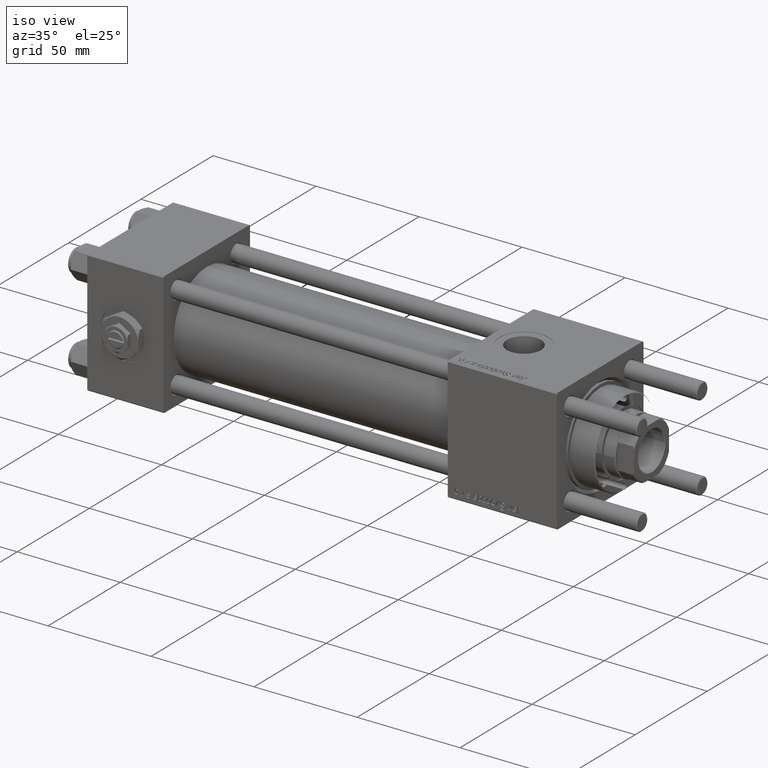
[diagram: clean part render]
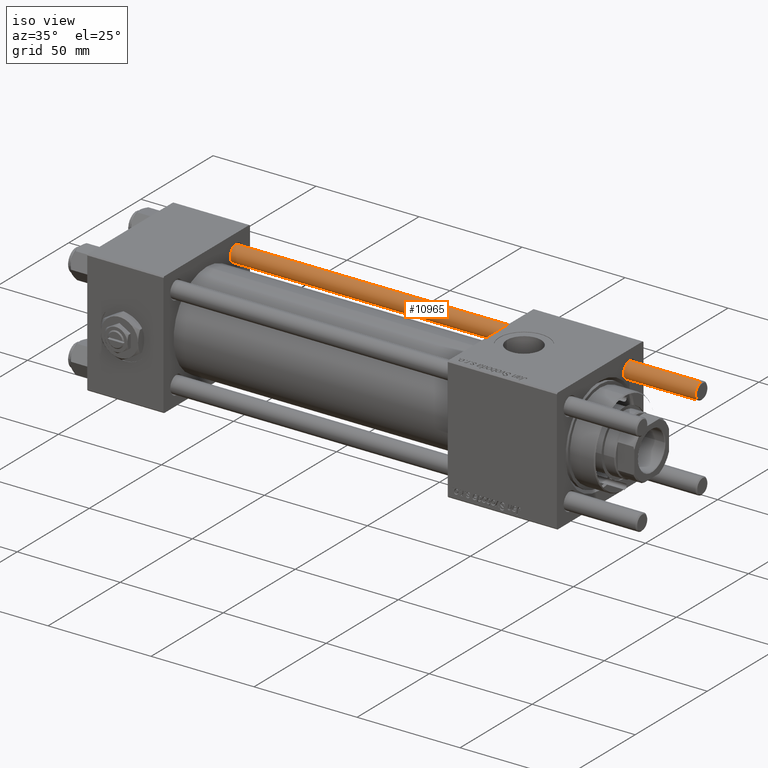
[diagram: same view with one face highlighted and labeled with its STEP entity id]
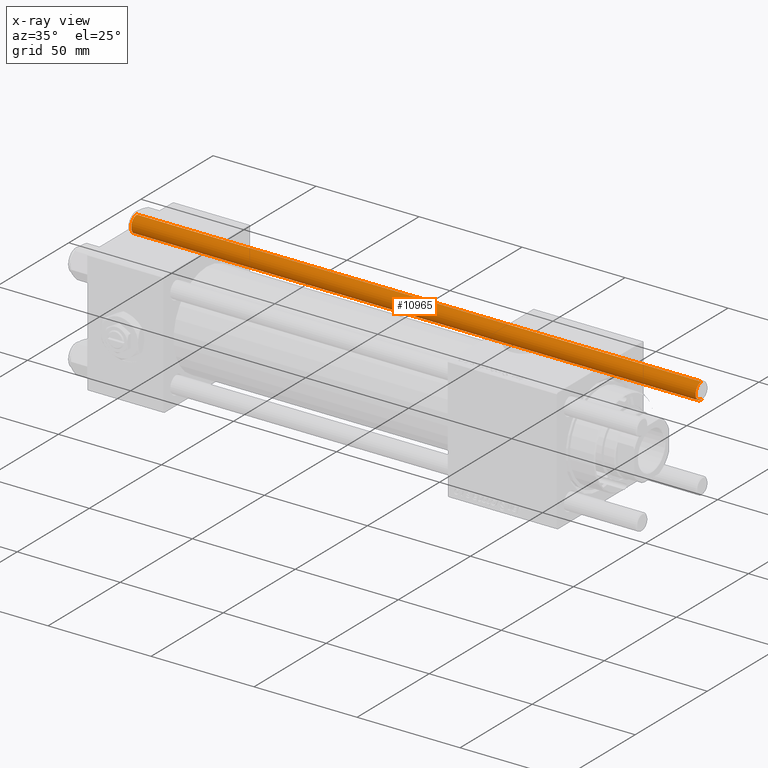
[diagram: x-ray of the same camera — body ghosted, the highlighted face saturated]
A machine part, iso view. The second image highlights one B-rep face of the part: STEP entity #10965.
The next image is the same camera in x-ray: the body ghosted, the highlighted face saturated — about 0% of this face is hidden behind the body in this view.
In plain terms, the highlighted cylindrical surface (edge-blend (fillet) strip) has radius 4 mm, axis along (1, -0, -0).
Its self-contained STEP definition (entity closure, byte-faithful):
#2130 = CARTESIAN_POINT ( 'NONE',  ( -4.000000000000000000, 0.000000000000000000, 0.5000000000000559552 ) ) ;
#3219 = DIRECTION ( 'NONE',  ( -0.000000000000000000, -0.000000000000000000, 1.000000000000000000 ) ) ;
#7165 = LINE ( 'NONE', #58197, #38874 ) ;
#7833 = ORIENTED_EDGE ( 'NONE', *, *, #13949, .T. ) ;
#10892 = ORIENTED_EDGE ( 'NONE', *, *, #54043, .F. ) ;
#10965 = ADVANCED_FACE ( 'NONE', ( #41205 ), #58227, .T. ) ;
#11728 = CARTESIAN_POINT ( 'NONE',  ( 4.000000000000000000, 4.898587196589412829E-16, 0.5000000000000559552 ) ) ;
#12338 = VECTOR ( 'NONE', #28240, 1000.000000000000000 ) ;
#12479 = CARTESIAN_POINT ( 'NONE',  ( 4.000000000000000000, 4.898587196589412829E-16, 274.5000000000000568 ) ) ;
#13949 = EDGE_CURVE ( 'NONE', #57065, #19289, #45317, .T. ) ;
#14505 = CARTESIAN_POINT ( 'NONE',  ( -4.000000000000000000, 0.000000000000000000, 275.0000000000000000 ) ) ;
#16418 = DIRECTION ( 'NONE',  ( -0.000000000000000000, -0.000000000000000000, -1.000000000000000000 ) ) ;
#19248 = VERTEX_POINT ( 'NONE', #2130 ) ;
#19289 = VERTEX_POINT ( 'NONE', #47792 ) ;
#22508 = ORIENTED_EDGE ( 'NONE', *, *, #29670, .T. ) ;
#22693 = DIRECTION ( 'NONE',  ( -1.000000000000000000, 0.000000000000000000, 0.000000000000000000 ) ) ;
#22954 = AXIS2_PLACEMENT_3D ( 'NONE', #33112, #3219, #25916 ) ;
#25144 = EDGE_LOOP ( 'NONE', ( #10892, #7833, #22508, #47397 ) ) ;
#25916 = DIRECTION ( 'NONE',  ( 1.000000000000000000, 0.000000000000000000, 0.000000000000000000 ) ) ;
#26807 = DIRECTION ( 'NONE',  ( 1.000000000000000000, 0.000000000000000000, 0.000000000000000000 ) ) ;
#28240 = DIRECTION ( 'NONE',  ( -0.000000000000000000, -0.000000000000000000, -1.000000000000000000 ) ) ;
#29670 = EDGE_CURVE ( 'NONE', #19289, #19248, #46729, .T. ) ;
#31520 = CIRCLE ( 'NONE', #22954, 4.000000000000000000 ) ;
#32373 = EDGE_CURVE ( 'NONE', #19248, #54948, #31520, .T. ) ;
#33112 = CARTESIAN_POINT ( 'NONE',  ( 0.000000000000000000, 0.000000000000000000, 0.5000000000000559552 ) ) ;
#37622 = AXIS2_PLACEMENT_3D ( 'NONE', #45954, #54037, #22693 ) ;
#38874 = VECTOR ( 'NONE', #16418, 1000.000000000000000 ) ;
#41205 = FACE_OUTER_BOUND ( 'NONE', #25144, .T. ) ;
#45317 = CIRCLE ( 'NONE', #55805, 4.000000000000000000 ) ;
#45954 = CARTESIAN_POINT ( 'NONE',  ( 0.000000000000000000, 0.000000000000000000, 275.0000000000000000 ) ) ;
#46729 = LINE ( 'NONE', #14505, #12338 ) ;
#47397 = ORIENTED_EDGE ( 'NONE', *, *, #32373, .T. ) ;
#47792 = CARTESIAN_POINT ( 'NONE',  ( -4.000000000000000000, 0.000000000000000000, 274.5000000000000568 ) ) ;
#49467 = DIRECTION ( 'NONE',  ( 0.000000000000000000, 0.000000000000000000, -1.000000000000000000 ) ) ;
#54037 = DIRECTION ( 'NONE',  ( -0.000000000000000000, -0.000000000000000000, -1.000000000000000000 ) ) ;
#54043 = EDGE_CURVE ( 'NONE', #57065, #54948, #7165, .T. ) ;
#54948 = VERTEX_POINT ( 'NONE', #11728 ) ;
#55805 = AXIS2_PLACEMENT_3D ( 'NONE', #57549, #49467, #26807 ) ;
#57065 = VERTEX_POINT ( 'NONE', #12479 ) ;
#57549 = CARTESIAN_POINT ( 'NONE',  ( 0.000000000000000000, 0.000000000000000000, 274.5000000000000568 ) ) ;
#58197 = CARTESIAN_POINT ( 'NONE',  ( 4.000000000000000000, 4.898587196589412829E-16, 275.0000000000000000 ) ) ;
#58227 = CYLINDRICAL_SURFACE ( 'NONE', #37622, 4.000000000000000000 ) ;